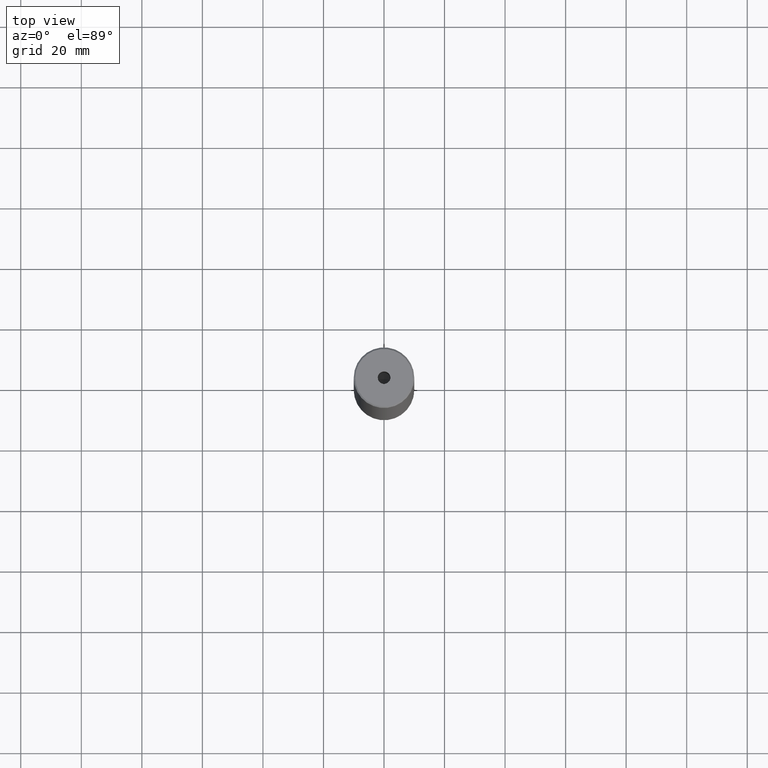
[diagram: clean part render]
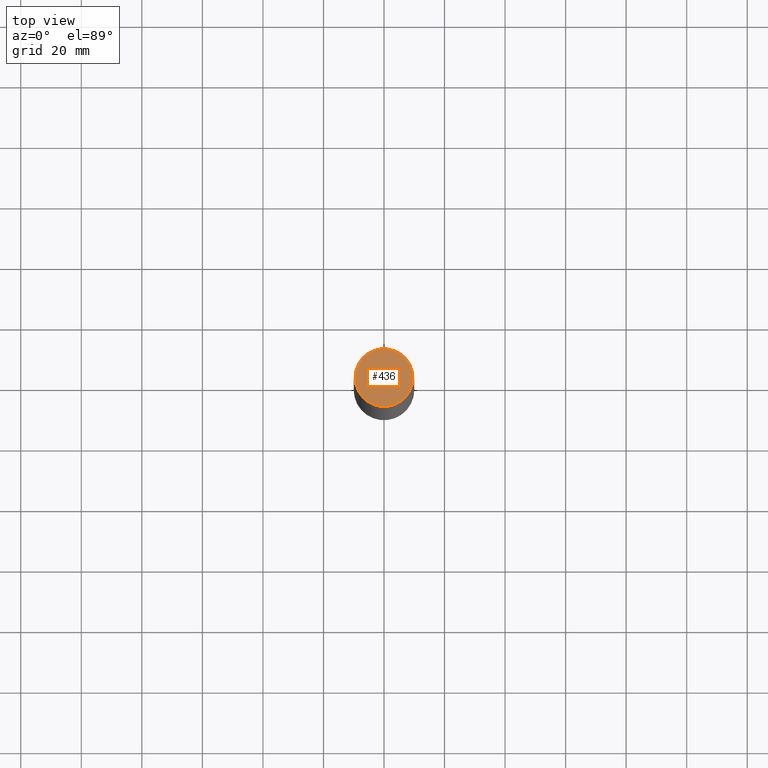
[diagram: same view with one face highlighted and labeled with its STEP entity id]
A machine part, top view. The second image highlights one B-rep face of the part: STEP entity #436.
In plain terms, the highlighted planar face has unit normal (0, -0, 1).
Its self-contained STEP definition (entity closure, byte-faithful):
#8 = EDGE_LOOP ( 'NONE', ( #275, #309 ) ) ;
#24 = EDGE_CURVE ( 'NONE', #410, #229, #467, .T. ) ;
#37 = AXIS2_PLACEMENT_3D ( 'NONE', #271, #450, #333 ) ;
#49 = DIRECTION ( 'NONE',  ( 1.000000000000000000, 0.000000000000000000, 0.000000000000000000 ) ) ;
#59 = CARTESIAN_POINT ( 'NONE',  ( 2.099999999999998757, 0.000000000000000000, -1.990051048614449116E-16 ) ) ;
#71 = DIRECTION ( 'NONE',  ( -0.000000000000000000, -0.000000000000000000, 1.000000000000000000 ) ) ;
#82 = AXIS2_PLACEMENT_3D ( 'NONE', #176, #71, #581 ) ;
#83 = DIRECTION ( 'NONE',  ( 1.000000000000000000, 0.000000000000000000, 0.000000000000000000 ) ) ;
#97 = CARTESIAN_POINT ( 'NONE',  ( 9.499999999999980460, 1.194030629168668286E-15, 0.000000000000000000 ) ) ;
#112 = DIRECTION ( 'NONE',  ( -0.000000000000000000, -0.000000000000000000, 1.000000000000000000 ) ) ;
#129 = CARTESIAN_POINT ( 'NONE',  ( -9.499999999999980460, 0.000000000000000000, 0.000000000000000000 ) ) ;
#138 = CARTESIAN_POINT ( 'NONE',  ( 0.000000000000000000, 0.000000000000000000, 0.000000000000000000 ) ) ;
#149 = CIRCLE ( 'NONE', #553, 9.499999999999980460 ) ;
#154 = DIRECTION ( 'NONE',  ( 1.000000000000000000, 0.000000000000000000, 0.000000000000000000 ) ) ;
#168 = EDGE_CURVE ( 'NONE', #549, #348, #149, .T. ) ;
#170 = AXIS2_PLACEMENT_3D ( 'NONE', #469, #112, #154 ) ;
#176 = CARTESIAN_POINT ( 'NONE',  ( 0.000000000000000000, 0.000000000000000000, -1.990051048614449116E-16 ) ) ;
#183 = EDGE_CURVE ( 'NONE', #348, #549, #479, .T. ) ;
#185 = PLANE ( 'NONE',  #442 ) ;
#229 = VERTEX_POINT ( 'NONE', #289 ) ;
#271 = CARTESIAN_POINT ( 'NONE',  ( 0.000000000000000000, 0.000000000000000000, 0.000000000000000000 ) ) ;
#275 = ORIENTED_EDGE ( 'NONE', *, *, #24, .F. ) ;
#282 = DIRECTION ( 'NONE',  ( 0.000000000000000000, -0.000000000000000000, 1.000000000000000000 ) ) ;
#289 = CARTESIAN_POINT ( 'NONE',  ( -2.099999999999998757, 2.571758278209440478E-16, -1.990051048614449116E-16 ) ) ;
#309 = ORIENTED_EDGE ( 'NONE', *, *, #473, .F. ) ;
#318 = DIRECTION ( 'NONE',  ( -0.000000000000000000, -0.000000000000000000, 1.000000000000000000 ) ) ;
#322 = FACE_BOUND ( 'NONE', #8, .T. ) ;
#325 = ORIENTED_EDGE ( 'NONE', *, *, #183, .T. ) ;
#333 = DIRECTION ( 'NONE',  ( 1.000000000000000000, 0.000000000000000000, 0.000000000000000000 ) ) ;
#348 = VERTEX_POINT ( 'NONE', #97 ) ;
#354 = EDGE_LOOP ( 'NONE', ( #399, #325 ) ) ;
#399 = ORIENTED_EDGE ( 'NONE', *, *, #168, .T. ) ;
#410 = VERTEX_POINT ( 'NONE', #59 ) ;
#412 = CARTESIAN_POINT ( 'NONE',  ( 0.000000000000000000, 0.000000000000000000, 0.000000000000000000 ) ) ;
#436 = ADVANCED_FACE ( 'NONE', ( #322, #453 ), #185, .T. ) ;
#442 = AXIS2_PLACEMENT_3D ( 'NONE', #412, #282, #49 ) ;
#450 = DIRECTION ( 'NONE',  ( -0.000000000000000000, -0.000000000000000000, 1.000000000000000000 ) ) ;
#453 = FACE_OUTER_BOUND ( 'NONE', #354, .T. ) ;
#467 = CIRCLE ( 'NONE', #82, 2.099999999999998757 ) ;
#469 = CARTESIAN_POINT ( 'NONE',  ( 0.000000000000000000, 0.000000000000000000, -1.990051048614449116E-16 ) ) ;
#473 = EDGE_CURVE ( 'NONE', #229, #410, #572, .T. ) ;
#479 = CIRCLE ( 'NONE', #37, 9.499999999999980460 ) ;
#549 = VERTEX_POINT ( 'NONE', #129 ) ;
#553 = AXIS2_PLACEMENT_3D ( 'NONE', #138, #318, #83 ) ;
#572 = CIRCLE ( 'NONE', #170, 2.099999999999998757 ) ;
#581 = DIRECTION ( 'NONE',  ( 1.000000000000000000, 0.000000000000000000, 0.000000000000000000 ) ) ;